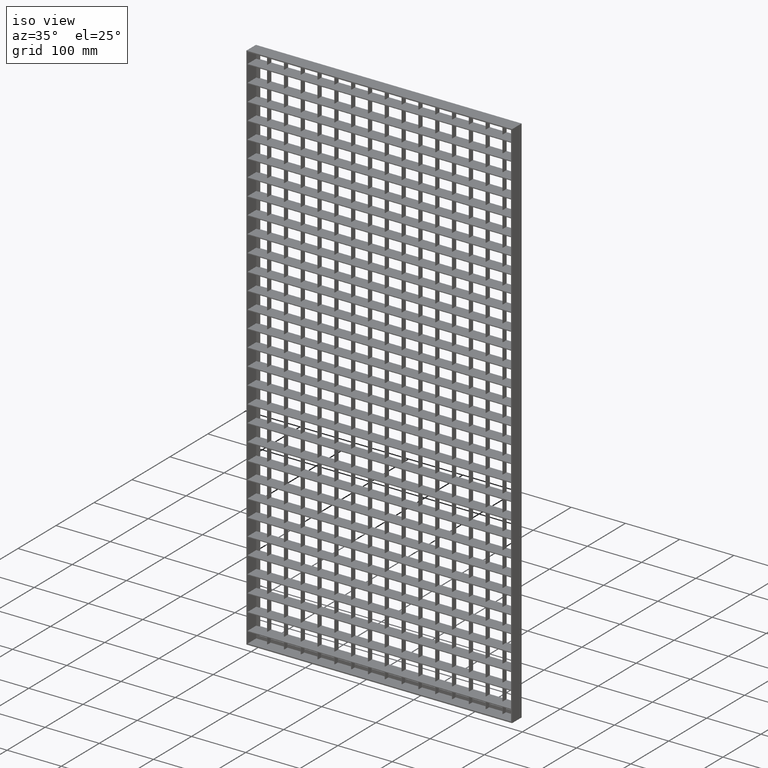
[diagram: clean part render]
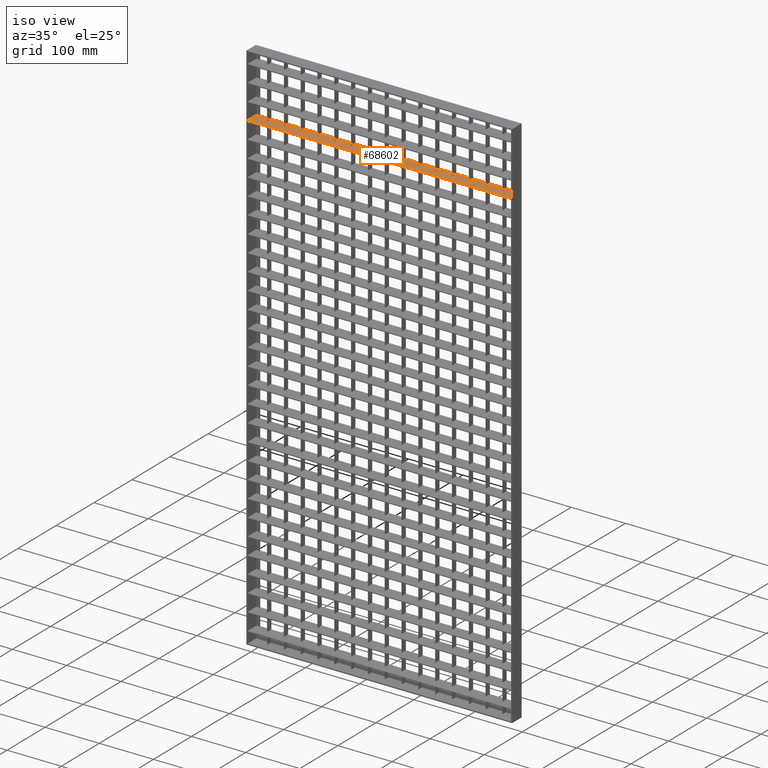
[diagram: same view with one face highlighted and labeled with its STEP entity id]
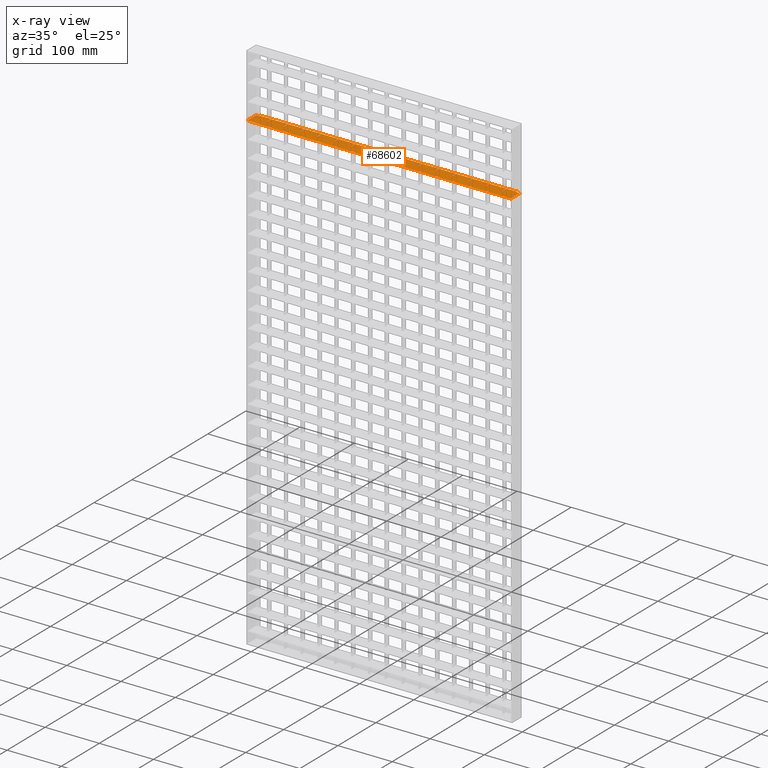
[diagram: x-ray of the same camera — body ghosted, the highlighted face saturated]
A machine part, iso view. The second image highlights one B-rep face of the part: STEP entity #68602.
The next image is the same camera in x-ray: the body ghosted, the highlighted face saturated — about 0% of this face is hidden behind the body in this view.
In plain terms, the highlighted planar face has unit normal (0, 0, 1).
Its self-contained STEP definition (entity closure, byte-faithful):
#96 = VECTOR ( 'NONE', #57185, 1000.000000000000000 ) ;
#450 = EDGE_CURVE ( 'NONE', #51834, #64537, #66896, .T. ) ;
#692 = CARTESIAN_POINT ( 'NONE',  ( 89.49999999999997200, 2.500000000000000400, -116.2500000000003600 ) ) ;
#843 = LINE ( 'NONE', #46391, #42956 ) ;
#906 = ORIENTED_EDGE ( 'NONE', *, *, #33358, .T. ) ;
#938 = VECTOR ( 'NONE', #62815, 1000.000000000000000 ) ;
#1150 = CARTESIAN_POINT ( 'NONE',  ( 58.49999999999994300, 2.499999999999999100, -116.2500000000003600 ) ) ;
#1262 = LINE ( 'NONE', #45015, #44298 ) ;
#1543 = ORIENTED_EDGE ( 'NONE', *, *, #28300, .T. ) ;
#1563 = DIRECTION ( 'NONE',  ( -0.0000000000000000000, 1.000000000000000000, 0.0000000000000000000 ) ) ;
#1612 = DIRECTION ( 'NONE',  ( -8.673617379884035500E-016, -1.000000000000000000, 0.0000000000000000000 ) ) ;
#1718 = VERTEX_POINT ( 'NONE', #10700 ) ;
#1926 = EDGE_CURVE ( 'NONE', #34857, #54946, #36627, .T. ) ;
#2058 = LINE ( 'NONE', #56972, #20094 ) ;
#2160 = CARTESIAN_POINT ( 'NONE',  ( 513.0449595727363900, 12.50000000000015500, -116.2500000000003600 ) ) ;
#2373 = LINE ( 'NONE', #56200, #28135 ) ;
#2557 = LINE ( 'NONE', #30107, #69672 ) ;
#2708 = DIRECTION ( 'NONE',  ( -0.0000000000000000000, -1.000000000000000000, 0.0000000000000000000 ) ) ;
#2755 = EDGE_CURVE ( 'NONE', #66484, #70826, #39073, .T. ) ;
#2800 = ORIENTED_EDGE ( 'NONE', *, *, #67935, .F. ) ;
#2880 = DIRECTION ( 'NONE',  ( 1.000000000000000000, 4.336808689942014300E-016, -0.0000000000000000000 ) ) ;
#2921 = VERTEX_POINT ( 'NONE', #62400 ) ;
#2976 = CARTESIAN_POINT ( 'NONE',  ( 120.5000000000000000, 12.50000000000000000, -116.2500000000006300 ) ) ;
#3070 = DIRECTION ( 'NONE',  ( 0.0000000000000000000, -1.000000000000000000, 0.0000000000000000000 ) ) ;
#3231 = VECTOR ( 'NONE', #43487, 1000.000000000000000 ) ;
#3452 = VERTEX_POINT ( 'NONE', #6533 ) ;
#3472 = DIRECTION ( 'NONE',  ( -0.0000000000000000000, 1.000000000000000000, 0.0000000000000000000 ) ) ;
#3495 = EDGE_CURVE ( 'NONE', #64537, #17684, #50975, .T. ) ;
#3661 = ORIENTED_EDGE ( 'NONE', *, *, #2755, .T. ) ;
#3817 = VERTEX_POINT ( 'NONE', #31188 ) ;
#3905 = VERTEX_POINT ( 'NONE', #66516 ) ;
#3942 = DIRECTION ( 'NONE',  ( 0.0000000000000000000, -1.000000000000000000, 0.0000000000000000000 ) ) ;
#3970 = CARTESIAN_POINT ( 'NONE',  ( 182.4999999999999400, 2.499999999999999100, -116.2500000000003600 ) ) ;
#4086 = CARTESIAN_POINT ( 'NONE',  ( 513.0449595727363900, 2.499999999999898300, -116.2500000000003600 ) ) ;
#4156 = ORIENTED_EDGE ( 'NONE', *, *, #26809, .T. ) ;
#4261 = DIRECTION ( 'NONE',  ( 0.0000000000000000000, -1.000000000000000000, 0.0000000000000000000 ) ) ;
#4425 = CARTESIAN_POINT ( 'NONE',  ( 513.0449595727363900, 2.500000000000116800, -116.2500000000003600 ) ) ;
#4470 = ORIENTED_EDGE ( 'NONE', *, *, #8255, .T. ) ;
#5018 = CARTESIAN_POINT ( 'NONE',  ( 513.0449595727363900, 12.50000000000015500, -116.2500000000003600 ) ) ;
#5051 = DIRECTION ( 'NONE',  ( -1.000000000000000000, 4.336808689942014800E-016, 0.0000000000000000000 ) ) ;
#5111 = VERTEX_POINT ( 'NONE', #28463 ) ;
#5173 = LINE ( 'NONE', #33961, #21457 ) ;
#5465 = VERTEX_POINT ( 'NONE', #29893 ) ;
#5477 = LINE ( 'NONE', #31841, #62275 ) ;
#5788 = CARTESIAN_POINT ( 'NONE',  ( 245.5000000000000000, 2.500000000000000400, -116.2500000000003600 ) ) ;
#5809 = EDGE_CURVE ( 'NONE', #47899, #6969, #7566, .T. ) ;
#6163 = DIRECTION ( 'NONE',  ( -0.0000000000000000000, 1.000000000000000000, 0.0000000000000000000 ) ) ;
#6182 = VECTOR ( 'NONE', #10430, 1000.000000000000000 ) ;
#6234 = VECTOR ( 'NONE', #19403, 1000.000000000000000 ) ;
#6385 = CARTESIAN_POINT ( 'NONE',  ( 90.50000000000002800, -12.49999999999984500, -116.2500000000003600 ) ) ;
#6533 = CARTESIAN_POINT ( 'NONE',  ( 431.5000000000000000, 2.500000000000000400, -116.2500000000004100 ) ) ;
#6749 = ORIENTED_EDGE ( 'NONE', *, *, #8882, .F. ) ;
#6751 = DIRECTION ( 'NONE',  ( -1.000000000000000000, -3.061616997868382600E-016, 0.0000000000000000000 ) ) ;
#6957 = EDGE_CURVE ( 'NONE', #47640, #16005, #37284, .T. ) ;
#6969 = VERTEX_POINT ( 'NONE', #50909 ) ;
#6987 = VERTEX_POINT ( 'NONE', #45615 ) ;
#7191 = VERTEX_POINT ( 'NONE', #54724 ) ;
#7566 = LINE ( 'NONE', #22852, #20406 ) ;
#7574 = EDGE_CURVE ( 'NONE', #54946, #33573, #26114, .T. ) ;
#7694 = DIRECTION ( 'NONE',  ( 0.0000000000000000000, -1.000000000000000000, 0.0000000000000000000 ) ) ;
#7710 = ORIENTED_EDGE ( 'NONE', *, *, #27136, .T. ) ;
#7719 = EDGE_CURVE ( 'NONE', #31366, #49415, #26950, .T. ) ;
#7867 = DIRECTION ( 'NONE',  ( -1.000000000000000000, -3.061616997868382600E-016, 0.0000000000000000000 ) ) ;
#8066 = ORIENTED_EDGE ( 'NONE', *, *, #5809, .F. ) ;
#8162 = VECTOR ( 'NONE', #5051, 1000.000000000000000 ) ;
#8255 = EDGE_CURVE ( 'NONE', #70826, #39419, #48464, .T. ) ;
#8279 = ORIENTED_EDGE ( 'NONE', *, *, #32997, .F. ) ;
#8537 = CARTESIAN_POINT ( 'NONE',  ( 214.5000000000000300, -12.49999999999984500, -116.2500000000003600 ) ) ;
#8663 = EDGE_CURVE ( 'NONE', #39419, #1718, #11347, .T. ) ;
#8795 = VECTOR ( 'NONE', #9367, 1000.000000000000000 ) ;
#8882 = EDGE_CURVE ( 'NONE', #57265, #52900, #45717, .T. ) ;
#9086 = EDGE_CURVE ( 'NONE', #50768, #16005, #23298, .T. ) ;
#9091 = DIRECTION ( 'NONE',  ( -1.000000000000000000, 4.336808689942014300E-016, 0.0000000000000000000 ) ) ;
#9367 = DIRECTION ( 'NONE',  ( -1.000000000000000000, -3.061616997868382600E-016, 0.0000000000000000000 ) ) ;
#9679 = EDGE_CURVE ( 'NONE', #3905, #16302, #47353, .T. ) ;
#9761 = VERTEX_POINT ( 'NONE', #45487 ) ;
#9845 = VECTOR ( 'NONE', #6163, 1000.000000000000000 ) ;
#10430 = DIRECTION ( 'NONE',  ( 0.0000000000000000000, -1.000000000000000000, 0.0000000000000000000 ) ) ;
#10576 = ORIENTED_EDGE ( 'NONE', *, *, #10875, .T. ) ;
#10682 = CARTESIAN_POINT ( 'NONE',  ( 214.5000000000000300, 2.500000000000000400, -116.2500000000003600 ) ) ;
#10700 = CARTESIAN_POINT ( 'NONE',  ( 307.5000000000000000, 2.500000000000000400, -116.2500000000006300 ) ) ;
#10873 = EDGE_CURVE ( 'NONE', #52900, #38945, #65132, .T. ) ;
#10875 = EDGE_CURVE ( 'NONE', #40336, #25561, #68582, .T. ) ;
#10963 = VERTEX_POINT ( 'NONE', #21974 ) ;
#11153 = CARTESIAN_POINT ( 'NONE',  ( 400.4999999999999400, -12.49999999999984500, -116.2500000000003600 ) ) ;
#11300 = ORIENTED_EDGE ( 'NONE', *, *, #22716, .F. ) ;
#11347 = LINE ( 'NONE', #35960, #58697 ) ;
#11461 = EDGE_CURVE ( 'NONE', #66054, #3817, #15070, .T. ) ;
#11468 = LINE ( 'NONE', #40586, #16603 ) ;
#12138 = CARTESIAN_POINT ( 'NONE',  ( 399.4999999999999400, 2.500000000000000900, -116.2500000000004100 ) ) ;
#12155 = CARTESIAN_POINT ( 'NONE',  ( 151.5000000000000000, 12.50000000000000000, -116.2500000000006300 ) ) ;
#12248 = ORIENTED_EDGE ( 'NONE', *, *, #56281, .T. ) ;
#13204 = DIRECTION ( 'NONE',  ( -1.000000000000000000, 4.336808689942014300E-016, 0.0000000000000000000 ) ) ;
#13674 = VECTOR ( 'NONE', #33749, 1000.000000000000000 ) ;
#13920 = CARTESIAN_POINT ( 'NONE',  ( 513.0449595727363900, 2.500000000000196300, -116.2500000000003600 ) ) ;
#13946 = CARTESIAN_POINT ( 'NONE',  ( 513.0449595727363900, 2.499999999999924100, -116.2500000000003600 ) ) ;
#13966 = VECTOR ( 'NONE', #17785, 1000.000000000000000 ) ;
#14173 = VERTEX_POINT ( 'NONE', #28811 ) ;
#14406 = EDGE_CURVE ( 'NONE', #38945, #7191, #52412, .T. ) ;
#14683 = VECTOR ( 'NONE', #13204, 1000.000000000000000 ) ;
#14718 = ORIENTED_EDGE ( 'NONE', *, *, #15001, .T. ) ;
#14832 = CARTESIAN_POINT ( 'NONE',  ( 513.0449595727363900, 12.50000000000015500, -116.2500000000003600 ) ) ;
#14905 = EDGE_CURVE ( 'NONE', #53108, #49419, #2373, .T. ) ;
#14929 = VECTOR ( 'NONE', #58959, 1000.000000000000000 ) ;
#14958 = ORIENTED_EDGE ( 'NONE', *, *, #47499, .T. ) ;
#15001 = EDGE_CURVE ( 'NONE', #66912, #66054, #30758, .T. ) ;
#15055 = CARTESIAN_POINT ( 'NONE',  ( 276.4999999999999400, 2.500000000000000400, -116.2500000000006300 ) ) ;
#15066 = CARTESIAN_POINT ( 'NONE',  ( 275.4999999999999400, -12.49999999999984500, -116.2500000000003600 ) ) ;
#15070 = LINE ( 'NONE', #58537, #27968 ) ;
#15258 = CARTESIAN_POINT ( 'NONE',  ( 513.0449595727363900, 2.499999999999977800, -116.2500000000003600 ) ) ;
#15259 = CARTESIAN_POINT ( 'NONE',  ( 461.5000000000000000, -12.49999999999984500, -116.2500000000003600 ) ) ;
#15303 = ORIENTED_EDGE ( 'NONE', *, *, #11461, .T. ) ;
#15406 = EDGE_CURVE ( 'NONE', #2921, #26671, #16873, .T. ) ;
#15553 = LINE ( 'NONE', #28742, #37916 ) ;
#15576 = CARTESIAN_POINT ( 'NONE',  ( 90.50000000000002800, 2.500000000000000400, -116.2500000000003600 ) ) ;
#15803 = VECTOR ( 'NONE', #48952, 1000.000000000000000 ) ;
#16005 = VERTEX_POINT ( 'NONE', #68423 ) ;
#16061 = DIRECTION ( 'NONE',  ( 1.000000000000000000, 4.336808689942014800E-016, -0.0000000000000000000 ) ) ;
#16302 = VERTEX_POINT ( 'NONE', #43382 ) ;
#16310 = DIRECTION ( 'NONE',  ( -1.000000000000000000, -3.061616997868382600E-016, 0.0000000000000000000 ) ) ;
#16350 = CARTESIAN_POINT ( 'NONE',  ( 430.5000000000000000, 12.50000000000013000, -116.2500000000003600 ) ) ;
#16417 = LINE ( 'NONE', #40375, #14683 ) ;
#16529 = LINE ( 'NONE', #41068, #6234 ) ;
#16556 = CARTESIAN_POINT ( 'NONE',  ( 245.5000000000000000, -12.49999999999984500, -116.2500000000003600 ) ) ;
#16603 = VECTOR ( 'NONE', #41045, 1000.000000000000000 ) ;
#16632 = CARTESIAN_POINT ( 'NONE',  ( 275.4999999999999400, 12.50000000000008200, -116.2500000000003600 ) ) ;
#16693 = EDGE_CURVE ( 'NONE', #48360, #6987, #45124, .T. ) ;
#16873 = LINE ( 'NONE', #24962, #54806 ) ;
#17104 = LINE ( 'NONE', #22677, #13674 ) ;
#17148 = VERTEX_POINT ( 'NONE', #22438 ) ;
#17369 = VECTOR ( 'NONE', #41198, 1000.000000000000000 ) ;
#17679 = DIRECTION ( 'NONE',  ( -1.000000000000000000, 4.336808689942014800E-016, 0.0000000000000000000 ) ) ;
#17684 = VERTEX_POINT ( 'NONE', #54619 ) ;
#17785 = DIRECTION ( 'NONE',  ( -1.000000000000000000, -3.061616997868382600E-016, 0.0000000000000000000 ) ) ;
#17927 = CARTESIAN_POINT ( 'NONE',  ( 488.0000000000001100, -12.50000000000000400, -116.2500000000003600 ) ) ;
#18075 = EDGE_CURVE ( 'NONE', #3452, #66912, #16417, .T. ) ;
#18157 = VERTEX_POINT ( 'NONE', #20129 ) ;
#18460 = VECTOR ( 'NONE', #49620, 1000.000000000000000 ) ;
#18551 = DIRECTION ( 'NONE',  ( -0.0000000000000000000, 1.000000000000000000, 0.0000000000000000000 ) ) ;
#18768 = CARTESIAN_POINT ( 'NONE',  ( 482.0000000000001700, 10.50000000000036400, -116.2500000000004100 ) ) ;
#18931 = DIRECTION ( 'NONE',  ( 1.000000000000000000, 0.0000000000000000000, -0.0000000000000000000 ) ) ;
#19119 = DIRECTION ( 'NONE',  ( -1.000000000000000000, -3.061616997868382600E-016, 0.0000000000000000000 ) ) ;
#19202 = CARTESIAN_POINT ( 'NONE',  ( 27.49999999999999600, 12.50000000000000000, -116.2500000000004100 ) ) ;
#19396 = VECTOR ( 'NONE', #66596, 1000.000000000000000 ) ;
#19403 = DIRECTION ( 'NONE',  ( -0.0000000000000000000, 1.000000000000000000, 0.0000000000000000000 ) ) ;
#19555 = ORIENTED_EDGE ( 'NONE', *, *, #22077, .T. ) ;
#19968 = EDGE_CURVE ( 'NONE', #18157, #10963, #48892, .T. ) ;
#20094 = VECTOR ( 'NONE', #55993, 1000.000000000000000 ) ;
#20127 = VECTOR ( 'NONE', #1563, 1000.000000000000000 ) ;
#20129 = CARTESIAN_POINT ( 'NONE',  ( 244.5000000000000000, 12.50000000000000000, -116.2500000000006300 ) ) ;
#20223 = AXIS2_PLACEMENT_3D ( 'NONE', #68721, #29992, #18931 ) ;
#20283 = VERTEX_POINT ( 'NONE', #57581 ) ;
#20406 = VECTOR ( 'NONE', #67114, 1000.000000000000000 ) ;
#20677 = VECTOR ( 'NONE', #4261, 1000.000000000000000 ) ;
#20783 = EDGE_CURVE ( 'NONE', #51693, #6969, #64251, .T. ) ;
#21042 = LINE ( 'NONE', #25977, #58984 ) ;
#21093 = ORIENTED_EDGE ( 'NONE', *, *, #70552, .T. ) ;
#21457 = VECTOR ( 'NONE', #39021, 1000.000000000000000 ) ;
#21656 = EDGE_CURVE ( 'NONE', #16302, #21846, #26181, .T. ) ;
#21752 = EDGE_CURVE ( 'NONE', #17148, #30902, #51158, .T. ) ;
#21846 = VERTEX_POINT ( 'NONE', #10682 ) ;
#21932 = VERTEX_POINT ( 'NONE', #56867 ) ;
#21974 = CARTESIAN_POINT ( 'NONE',  ( 214.5000000000000300, 12.50000000000006400, -116.2500000000003600 ) ) ;
#22077 = EDGE_CURVE ( 'NONE', #20283, #21932, #61427, .T. ) ;
#22165 = DIRECTION ( 'NONE',  ( -1.000000000000000000, -3.061616997868382600E-016, 0.0000000000000000000 ) ) ;
#22215 = VERTEX_POINT ( 'NONE', #70967 ) ;
#22290 = VECTOR ( 'NONE', #41111, 1000.000000000000000 ) ;
#22361 = ORIENTED_EDGE ( 'NONE', *, *, #61839, .F. ) ;
#22438 = CARTESIAN_POINT ( 'NONE',  ( 400.4999999999999400, 2.500000000000000400, -116.2500000000004100 ) ) ;
#22585 = CARTESIAN_POINT ( 'NONE',  ( 28.49999999999997200, 2.500000000000000400, -116.2500000000003600 ) ) ;
#22660 = VECTOR ( 'NONE', #7867, 1000.000000000000000 ) ;
#22677 = CARTESIAN_POINT ( 'NONE',  ( 369.5000000000000600, -12.49999999999984500, -116.2500000000003600 ) ) ;
#22702 = ORIENTED_EDGE ( 'NONE', *, *, #62460, .F. ) ;
#22716 = EDGE_CURVE ( 'NONE', #60746, #61676, #37166, .T. ) ;
#22748 = CARTESIAN_POINT ( 'NONE',  ( 461.5000000000000000, 2.500000000000000900, -116.2500000000004100 ) ) ;
#22852 = CARTESIAN_POINT ( 'NONE',  ( 28.49999999999997200, -12.49999999999984500, -116.2500000000003600 ) ) ;
#22865 = VERTEX_POINT ( 'NONE', #44559 ) ;
#23082 = CARTESIAN_POINT ( 'NONE',  ( 338.5000000000000000, 12.50000000000000000, -116.2500000000006300 ) ) ;
#23095 = VECTOR ( 'NONE', #31160, 1000.000000000000000 ) ;
#23298 = LINE ( 'NONE', #6385, #35322 ) ;
#23436 = VECTOR ( 'NONE', #16310, 1000.000000000000000 ) ;
#23466 = EDGE_CURVE ( 'NONE', #71134, #49415, #29754, .T. ) ;
#23620 = CARTESIAN_POINT ( 'NONE',  ( 368.5000000000000600, -12.49999999999984500, -116.2500000000003600 ) ) ;
#23894 = LINE ( 'NONE', #4086, #3231 ) ;
#24038 = ORIENTED_EDGE ( 'NONE', *, *, #67385, .T. ) ;
#24152 = CARTESIAN_POINT ( 'NONE',  ( 306.5000000000000000, -12.49999999999984500, -116.2500000000003600 ) ) ;
#24465 = VECTOR ( 'NONE', #22165, 1000.000000000000000 ) ;
#24664 = VECTOR ( 'NONE', #55847, 1000.000000000000000 ) ;
#24672 = VECTOR ( 'NONE', #36663, 1000.000000000000000 ) ;
#24722 = ORIENTED_EDGE ( 'NONE', *, *, #21752, .T. ) ;
#24962 = CARTESIAN_POINT ( 'NONE',  ( 513.0449595727363900, 12.50000000000015500, -116.2500000000003600 ) ) ;
#25010 = ORIENTED_EDGE ( 'NONE', *, *, #7719, .T. ) ;
#25453 = LINE ( 'NONE', #62604, #71087 ) ;
#25561 = VERTEX_POINT ( 'NONE', #22748 ) ;
#25813 = ORIENTED_EDGE ( 'NONE', *, *, #20783, .T. ) ;
#25977 = CARTESIAN_POINT ( 'NONE',  ( 513.0449595727363900, 12.50000000000015500, -116.2500000000003600 ) ) ;
#26114 = LINE ( 'NONE', #34453, #20127 ) ;
#26181 = LINE ( 'NONE', #47974, #33940 ) ;
#26213 = CARTESIAN_POINT ( 'NONE',  ( 368.5000000000000600, 2.500000000000000900, -116.2500000000006300 ) ) ;
#26330 = VECTOR ( 'NONE', #3942, 1000.000000000000000 ) ;
#26336 = DIRECTION ( 'NONE',  ( 1.000000000000000000, 4.336808689942014300E-016, -0.0000000000000000000 ) ) ;
#26582 = VERTEX_POINT ( 'NONE', #66640 ) ;
#26612 = LINE ( 'NONE', #8537, #28340 ) ;
#26671 = VERTEX_POINT ( 'NONE', #23082 ) ;
#26809 = EDGE_CURVE ( 'NONE', #32787, #66484, #64484, .T. ) ;
#26950 = LINE ( 'NONE', #50087, #36405 ) ;
#27136 = EDGE_CURVE ( 'NONE', #14173, #22865, #17104, .T. ) ;
#27584 = VERTEX_POINT ( 'NONE', #26213 ) ;
#27885 = LINE ( 'NONE', #4425, #48555 ) ;
#27968 = VECTOR ( 'NONE', #52286, 1000.000000000000000 ) ;
#28097 = LINE ( 'NONE', #44291, #24664 ) ;
#28135 = VECTOR ( 'NONE', #1612, 1000.000000000000000 ) ;
#28149 = CARTESIAN_POINT ( 'NONE',  ( 7.999999999999994700, 12.50000000000000500, -116.2500000000004100 ) ) ;
#28300 = EDGE_CURVE ( 'NONE', #36420, #65101, #23894, .T. ) ;
#28340 = VECTOR ( 'NONE', #3472, 1000.000000000000000 ) ;
#28463 = CARTESIAN_POINT ( 'NONE',  ( 2.000000000000002700, 10.50000000000000500, -116.2500000000004100 ) ) ;
#28677 = VECTOR ( 'NONE', #29376, 1000.000000000000000 ) ;
#28742 = CARTESIAN_POINT ( 'NONE',  ( 513.0449595727363900, 2.499999999999937800, -116.2500000000003600 ) ) ;
#28811 = CARTESIAN_POINT ( 'NONE',  ( 369.5000000000000600, 12.50000000000000000, -116.2500000000006300 ) ) ;
#28975 = CARTESIAN_POINT ( 'NONE',  ( 513.0449595727363900, 12.50000000000015500, -116.2500000000003600 ) ) ;
#29043 = VECTOR ( 'NONE', #68173, 1000.000000000000000 ) ;
#29047 = VECTOR ( 'NONE', #32388, 1000.000000000000000 ) ;
#29164 = ORIENTED_EDGE ( 'NONE', *, *, #19968, .T. ) ;
#29376 = DIRECTION ( 'NONE',  ( -8.673617379884034500E-016, 1.000000000000000000, 0.0000000000000000000 ) ) ;
#29388 = CARTESIAN_POINT ( 'NONE',  ( 183.5000000000000000, 2.500000000000000400, -116.2500000000003600 ) ) ;
#29728 = DIRECTION ( 'NONE',  ( -1.000000000000000000, -3.061616997868382600E-016, 0.0000000000000000000 ) ) ;
#29754 = LINE ( 'NONE', #16556, #19396 ) ;
#29807 = CARTESIAN_POINT ( 'NONE',  ( 121.5000000000000000, 2.500000000000000400, -116.2500000000003600 ) ) ;
#29893 = CARTESIAN_POINT ( 'NONE',  ( 152.4999999999999700, 2.500000000000000400, -116.2500000000003600 ) ) ;
#29992 = DIRECTION ( 'NONE',  ( 0.0000000000000000000, 0.0000000000000000000, 1.000000000000000000 ) ) ;
#30107 = CARTESIAN_POINT ( 'NONE',  ( 431.5000000000000000, -12.49999999999984500, -116.2500000000003600 ) ) ;
#30179 = CARTESIAN_POINT ( 'NONE',  ( 513.0449595727363900, 12.50000000000015500, -116.2500000000003600 ) ) ;
#30463 = ORIENTED_EDGE ( 'NONE', *, *, #61383, .F. ) ;
#30561 = VERTEX_POINT ( 'NONE', #29807 ) ;
#30758 = LINE ( 'NONE', #62677, #29043 ) ;
#30902 = VERTEX_POINT ( 'NONE', #12138 ) ;
#31134 = VECTOR ( 'NONE', #34831, 1000.000000000000000 ) ;
#31160 = DIRECTION ( 'NONE',  ( -0.0000000000000000000, 1.000000000000000000, 0.0000000000000000000 ) ) ;
#31188 = CARTESIAN_POINT ( 'NONE',  ( 400.4999999999999400, 12.50000000000000000, -116.2500000000004100 ) ) ;
#31333 = EDGE_CURVE ( 'NONE', #3817, #17148, #48654, .T. ) ;
#31335 = LINE ( 'NONE', #46131, #66637 ) ;
#31366 = VERTEX_POINT ( 'NONE', #16632 ) ;
#31394 = DIRECTION ( 'NONE',  ( -0.0000000000000000000, 1.000000000000000000, 0.0000000000000000000 ) ) ;
#31433 = CARTESIAN_POINT ( 'NONE',  ( 245.5000000000000000, 12.50000000000007300, -116.2500000000003600 ) ) ;
#31458 = VERTEX_POINT ( 'NONE', #53713 ) ;
#31624 = EDGE_CURVE ( 'NONE', #21932, #67962, #41672, .T. ) ;
#31646 = ORIENTED_EDGE ( 'NONE', *, *, #58895, .F. ) ;
#31662 = ORIENTED_EDGE ( 'NONE', *, *, #58603, .F. ) ;
#31841 = CARTESIAN_POINT ( 'NONE',  ( 513.0449595727363900, 2.500000000000210500, -116.2500000000003600 ) ) ;
#32020 = ORIENTED_EDGE ( 'NONE', *, *, #53065, .T. ) ;
#32030 = DIRECTION ( 'NONE',  ( 1.000000000000000000, 4.336808689942014800E-016, -0.0000000000000000000 ) ) ;
#32256 = ORIENTED_EDGE ( 'NONE', *, *, #10873, .F. ) ;
#32267 = CARTESIAN_POINT ( 'NONE',  ( 338.5000000000000000, -12.49999999999984500, -116.2500000000003600 ) ) ;
#32388 = DIRECTION ( 'NONE',  ( -1.000000000000000000, -3.061616997868382600E-016, 0.0000000000000000000 ) ) ;
#32787 = VERTEX_POINT ( 'NONE', #59482 ) ;
#32857 = LINE ( 'NONE', #62856, #38875 ) ;
#32997 = EDGE_CURVE ( 'NONE', #22215, #5465, #1262, .T. ) ;
#33041 = CARTESIAN_POINT ( 'NONE',  ( 337.5000000000000000, -12.49999999999984500, -116.2500000000003600 ) ) ;
#33172 = ORIENTED_EDGE ( 'NONE', *, *, #31333, .T. ) ;
#33202 = CARTESIAN_POINT ( 'NONE',  ( 213.5000000000000300, -12.49999999999984500, -116.2500000000003600 ) ) ;
#33358 = EDGE_CURVE ( 'NONE', #9761, #20283, #50232, .T. ) ;
#33543 = CARTESIAN_POINT ( 'NONE',  ( 89.50000000000000000, 12.50000000000000000, -116.2500000000004100 ) ) ;
#33573 = VERTEX_POINT ( 'NONE', #34110 ) ;
#33749 = DIRECTION ( 'NONE',  ( 0.0000000000000000000, -1.000000000000000000, 0.0000000000000000000 ) ) ;
#33940 = VECTOR ( 'NONE', #32030, 1000.000000000000000 ) ;
#33959 = DIRECTION ( 'NONE',  ( 0.0000000000000000000, -1.000000000000000000, 0.0000000000000000000 ) ) ;
#33961 = CARTESIAN_POINT ( 'NONE',  ( 513.0449595727363900, 12.50000000000015500, -116.2500000000003600 ) ) ;
#34110 = CARTESIAN_POINT ( 'NONE',  ( 59.50000000000005000, 12.50000000000001600, -116.2500000000003600 ) ) ;
#34141 = VECTOR ( 'NONE', #55407, 1000.000000000000000 ) ;
#34452 = DIRECTION ( 'NONE',  ( -0.0000000000000000000, 1.000000000000000000, 0.0000000000000000000 ) ) ;
#34453 = CARTESIAN_POINT ( 'NONE',  ( 59.50000000000000000, -12.49999999999984500, -116.2500000000003600 ) ) ;
#34640 = VECTOR ( 'NONE', #50607, 1000.000000000000000 ) ;
#34688 = VECTOR ( 'NONE', #40814, 1000.000000000000000 ) ;
#34831 = DIRECTION ( 'NONE',  ( -1.000000000000000000, 0.0000000000000000000, 0.0000000000000000000 ) ) ;
#34842 = DIRECTION ( 'NONE',  ( -1.000000000000000000, -3.061616997868382600E-016, 0.0000000000000000000 ) ) ;
#34857 = VERTEX_POINT ( 'NONE', #1150 ) ;
#34920 = DIRECTION ( 'NONE',  ( -1.000000000000000000, -3.061616997868382600E-016, 0.0000000000000000000 ) ) ;
#34986 = DIRECTION ( 'NONE',  ( -0.0000000000000000000, 1.000000000000000000, 0.0000000000000000000 ) ) ;
#35084 = ORIENTED_EDGE ( 'NONE', *, *, #23466, .F. ) ;
#35322 = VECTOR ( 'NONE', #56175, 1000.000000000000000 ) ;
#35402 = VERTEX_POINT ( 'NONE', #50114 ) ;
#35448 = EDGE_CURVE ( 'NONE', #41248, #53108, #5173, .T. ) ;
#35656 = CARTESIAN_POINT ( 'NONE',  ( 58.50000000000000000, 12.50000000000000000, -116.2500000000004100 ) ) ;
#35808 = CARTESIAN_POINT ( 'NONE',  ( 2.000000000000001800, -12.50000000000000200, -116.2500000000003600 ) ) ;
#35960 = CARTESIAN_POINT ( 'NONE',  ( 307.5000000000000000, -12.49999999999984500, -116.2500000000003600 ) ) ;
#36054 = ORIENTED_EDGE ( 'NONE', *, *, #18075, .T. ) ;
#36405 = VECTOR ( 'NONE', #39227, 1000.000000000000000 ) ;
#36420 = VERTEX_POINT ( 'NONE', #15055 ) ;
#36552 = ORIENTED_EDGE ( 'NONE', *, *, #58565, .F. ) ;
#36599 = ORIENTED_EDGE ( 'NONE', *, *, #70761, .T. ) ;
#36627 = LINE ( 'NONE', #13920, #68474 ) ;
#36663 = DIRECTION ( 'NONE',  ( 1.000000000000000000, 4.336808689942014800E-016, -0.0000000000000000000 ) ) ;
#37166 = LINE ( 'NONE', #54440, #50122 ) ;
#37284 = LINE ( 'NONE', #28975, #22660 ) ;
#37387 = ORIENTED_EDGE ( 'NONE', *, *, #57656, .T. ) ;
#37430 = LINE ( 'NONE', #23620, #46949 ) ;
#37675 = ORIENTED_EDGE ( 'NONE', *, *, #38827, .T. ) ;
#37693 = CARTESIAN_POINT ( 'NONE',  ( 7.999999999999992900, 10.50000000000000500, -116.2500000000004100 ) ) ;
#37871 = DIRECTION ( 'NONE',  ( 1.000000000000000000, 4.336808689942014300E-016, -0.0000000000000000000 ) ) ;
#37916 = VECTOR ( 'NONE', #17679, 1000.000000000000000 ) ;
#37922 = LINE ( 'NONE', #50661, #59483 ) ;
#38090 = LINE ( 'NONE', #61179, #34640 ) ;
#38136 = VERTEX_POINT ( 'NONE', #17927 ) ;
#38266 = ORIENTED_EDGE ( 'NONE', *, *, #68661, .F. ) ;
#38502 = CARTESIAN_POINT ( 'NONE',  ( 462.5000000000000000, 2.500000000000000400, -116.2500000000004100 ) ) ;
#38827 = EDGE_CURVE ( 'NONE', #57265, #39250, #32857, .T. ) ;
#38875 = VECTOR ( 'NONE', #34920, 1000.000000000000000 ) ;
#38945 = VERTEX_POINT ( 'NONE', #29388 ) ;
#39021 = DIRECTION ( 'NONE',  ( -1.000000000000000000, -3.061616997868382600E-016, 0.0000000000000000000 ) ) ;
#39073 = LINE ( 'NONE', #33041, #9845 ) ;
#39227 = DIRECTION ( 'NONE',  ( -1.000000000000000000, -3.061616997868382600E-016, 0.0000000000000000000 ) ) ;
#39250 = VERTEX_POINT ( 'NONE', #45495 ) ;
#39419 = VERTEX_POINT ( 'NONE', #40647 ) ;
#39519 = VECTOR ( 'NONE', #26336, 1000.000000000000000 ) ;
#39698 = ORIENTED_EDGE ( 'NONE', *, *, #9086, .F. ) ;
#39880 = ORIENTED_EDGE ( 'NONE', *, *, #43164, .T. ) ;
#40031 = ORIENTED_EDGE ( 'NONE', *, *, #16693, .T. ) ;
#40049 = CARTESIAN_POINT ( 'NONE',  ( 430.5000000000000000, 2.500000000000000900, -116.2500000000004100 ) ) ;
#40336 = VERTEX_POINT ( 'NONE', #38502 ) ;
#40375 = CARTESIAN_POINT ( 'NONE',  ( 513.0449595727363900, 2.499999999999964000, -116.2500000000003600 ) ) ;
#40586 = CARTESIAN_POINT ( 'NONE',  ( 58.50000000000000000, -12.49999999999984500, -116.2500000000003600 ) ) ;
#40647 = CARTESIAN_POINT ( 'NONE',  ( 307.5000000000000000, 12.50000000000000000, -116.2500000000006300 ) ) ;
#40679 = ORIENTED_EDGE ( 'NONE', *, *, #14406, .F. ) ;
#40814 = DIRECTION ( 'NONE',  ( 0.0000000000000000000, -1.000000000000000000, 0.0000000000000000000 ) ) ;
#41045 = DIRECTION ( 'NONE',  ( 0.0000000000000000000, -1.000000000000000000, 0.0000000000000000000 ) ) ;
#41068 = CARTESIAN_POINT ( 'NONE',  ( 152.4999999999999700, -12.49999999999984500, -116.2500000000003600 ) ) ;
#41111 = DIRECTION ( 'NONE',  ( -1.000000000000000000, 4.336808689942014800E-016, 0.0000000000000000000 ) ) ;
#41198 = DIRECTION ( 'NONE',  ( 0.0000000000000000000, -1.000000000000000000, 0.0000000000000000000 ) ) ;
#41240 = FACE_OUTER_BOUND ( 'NONE', #50199, .T. ) ;
#41248 = VERTEX_POINT ( 'NONE', #19202 ) ;
#41297 = CARTESIAN_POINT ( 'NONE',  ( 513.0449595727363900, 2.500000000000184300, -116.2500000000003600 ) ) ;
#41551 = CARTESIAN_POINT ( 'NONE',  ( 337.5000000000000000, 2.500000000000000900, -116.2500000000006300 ) ) ;
#41671 = CARTESIAN_POINT ( 'NONE',  ( 27.49999999999996800, -12.49999999999984500, -116.2500000000003600 ) ) ;
#41672 = LINE ( 'NONE', #44091, #24465 ) ;
#42014 = EDGE_CURVE ( 'NONE', #60746, #33573, #21042, .T. ) ;
#42025 = CARTESIAN_POINT ( 'NONE',  ( 183.5000000000000000, -12.49999999999984500, -116.2500000000003600 ) ) ;
#42512 = ORIENTED_EDGE ( 'NONE', *, *, #46775, .T. ) ;
#42646 = EDGE_CURVE ( 'NONE', #1718, #51834, #47752, .T. ) ;
#42935 = EDGE_CURVE ( 'NONE', #64174, #14173, #31335, .T. ) ;
#42943 = ORIENTED_EDGE ( 'NONE', *, *, #59186, .F. ) ;
#42956 = VECTOR ( 'NONE', #7694, 1000.000000000000000 ) ;
#43164 = EDGE_CURVE ( 'NONE', #25561, #48360, #55387, .T. ) ;
#43278 = ORIENTED_EDGE ( 'NONE', *, *, #35448, .T. ) ;
#43368 = DIRECTION ( 'NONE',  ( 0.0000000000000000000, -1.000000000000000000, 0.0000000000000000000 ) ) ;
#43382 = CARTESIAN_POINT ( 'NONE',  ( 213.4999999999999700, 2.500000000000000400, -116.2500000000003600 ) ) ;
#43487 = DIRECTION ( 'NONE',  ( -1.000000000000000000, 4.336808689942014800E-016, 0.0000000000000000000 ) ) ;
#43956 = ORIENTED_EDGE ( 'NONE', *, *, #67458, .F. ) ;
#44015 = ORIENTED_EDGE ( 'NONE', *, *, #14905, .T. ) ;
#44091 = CARTESIAN_POINT ( 'NONE',  ( 513.0449595727363900, 12.50000000000015500, -116.2500000000003600 ) ) ;
#44291 = CARTESIAN_POINT ( 'NONE',  ( 276.4999999999999400, -12.49999999999984500, -116.2500000000003600 ) ) ;
#44298 = VECTOR ( 'NONE', #67124, 1000.000000000000000 ) ;
#44559 = CARTESIAN_POINT ( 'NONE',  ( 369.5000000000000600, 2.500000000000000400, -116.2500000000006300 ) ) ;
#45015 = CARTESIAN_POINT ( 'NONE',  ( 513.0449595727363900, 2.500000000000156800, -116.2500000000003600 ) ) ;
#45124 = LINE ( 'NONE', #30179, #58070 ) ;
#45133 = VECTOR ( 'NONE', #70302, 1000.000000000000000 ) ;
#45487 = CARTESIAN_POINT ( 'NONE',  ( 488.0000000000001100, 10.50000000000000500, -116.2500000000004100 ) ) ;
#45495 = CARTESIAN_POINT ( 'NONE',  ( 152.5000000000000300, 12.50000000000004400, -116.2500000000003600 ) ) ;
#45615 = CARTESIAN_POINT ( 'NONE',  ( 431.5000000000000000, 12.50000000000000000, -116.2500000000004100 ) ) ;
#45622 = VECTOR ( 'NONE', #49113, 1000.000000000000000 ) ;
#45717 = LINE ( 'NONE', #54004, #20677 ) ;
#45778 = CARTESIAN_POINT ( 'NONE',  ( 306.5000000000000000, 12.50000000000009200, -116.2500000000003600 ) ) ;
#45873 = CARTESIAN_POINT ( 'NONE',  ( 462.5000000000000000, -12.49999999999984500, -116.2500000000003600 ) ) ;
#45971 = CARTESIAN_POINT ( 'NONE',  ( 399.4999999999999400, 12.50000000000012100, -116.2500000000003600 ) ) ;
#46131 = CARTESIAN_POINT ( 'NONE',  ( 513.0449595727363900, 12.50000000000015500, -116.2500000000003600 ) ) ;
#46156 = PLANE ( 'NONE',  #20223 ) ;
#46391 = CARTESIAN_POINT ( 'NONE',  ( 120.5000000000000000, -12.49999999999984500, -116.2500000000003600 ) ) ;
#46775 = EDGE_CURVE ( 'NONE', #22865, #27584, #15553, .T. ) ;
#46949 = VECTOR ( 'NONE', #34452, 1000.000000000000000 ) ;
#46988 = EDGE_CURVE ( 'NONE', #67962, #40336, #56901, .T. ) ;
#47156 = ORIENTED_EDGE ( 'NONE', *, *, #49830, .F. ) ;
#47353 = LINE ( 'NONE', #33202, #45622 ) ;
#47442 = LINE ( 'NONE', #32267, #6182 ) ;
#47499 = EDGE_CURVE ( 'NONE', #6987, #3452, #2557, .T. ) ;
#47640 = VERTEX_POINT ( 'NONE', #2976 ) ;
#47678 = LINE ( 'NONE', #15066, #65757 ) ;
#47752 = LINE ( 'NONE', #55064, #8162 ) ;
#47899 = VERTEX_POINT ( 'NONE', #22585 ) ;
#47912 = LINE ( 'NONE', #49644, #34141 ) ;
#47974 = CARTESIAN_POINT ( 'NONE',  ( 513.0449595727363900, 2.500000000000130600, -116.2500000000003600 ) ) ;
#48179 = LINE ( 'NONE', #41297, #39519 ) ;
#48344 = CARTESIAN_POINT ( 'NONE',  ( 513.0449595727363900, 12.50000000000015500, -116.2500000000003600 ) ) ;
#48360 = VERTEX_POINT ( 'NONE', #60093 ) ;
#48464 = LINE ( 'NONE', #48344, #23436 ) ;
#48511 = ORIENTED_EDGE ( 'NONE', *, *, #67592, .T. ) ;
#48518 = LINE ( 'NONE', #52390, #34688 ) ;
#48555 = VECTOR ( 'NONE', #16061, 1000.000000000000000 ) ;
#48654 = LINE ( 'NONE', #11153, #18460 ) ;
#48892 = LINE ( 'NONE', #5018, #29047 ) ;
#48952 = DIRECTION ( 'NONE',  ( -0.0000000000000000000, 1.000000000000000000, 0.0000000000000000000 ) ) ;
#49113 = DIRECTION ( 'NONE',  ( 0.0000000000000000000, -1.000000000000000000, 0.0000000000000000000 ) ) ;
#49415 = VERTEX_POINT ( 'NONE', #31433 ) ;
#49419 = VERTEX_POINT ( 'NONE', #37693 ) ;
#49620 = DIRECTION ( 'NONE',  ( 0.0000000000000000000, -1.000000000000000000, 0.0000000000000000000 ) ) ;
#49644 = CARTESIAN_POINT ( 'NONE',  ( 513.0449595727363900, 12.50000000000015500, -116.2500000000003600 ) ) ;
#49830 = EDGE_CURVE ( 'NONE', #41248, #49835, #57407, .T. ) ;
#49835 = VERTEX_POINT ( 'NONE', #52982 ) ;
#50087 = CARTESIAN_POINT ( 'NONE',  ( 513.0449595727363900, 12.50000000000015500, -116.2500000000003600 ) ) ;
#50104 = LINE ( 'NONE', #68027, #31134 ) ;
#50114 = CARTESIAN_POINT ( 'NONE',  ( 121.5000000000000000, 12.50000000000003600, -116.2500000000003600 ) ) ;
#50118 = ORIENTED_EDGE ( 'NONE', *, *, #46988, .T. ) ;
#50122 = VECTOR ( 'NONE', #43368, 1000.000000000000000 ) ;
#50199 = EDGE_LOOP ( 'NONE', ( #59926, #50118, #10576, #39880, #40031, #14958, #36054, #14718, #15303, #33172, #24722, #59969, #67054, #7710, #42512, #37387, #53955, #32020, #4156, #3661, #4470, #50298, #64437, #53205, #52156, #12248, #1543, #53275, #25010, #35084, #30463, #36552, #29164, #55906, #53128, #52169, #21093, #40679, #32256, #6749, #37675, #43956, #8279, #42943, #48511, #2800, #22361, #64811, #57056, #39698, #38266, #11300, #54626, #52110, #69661, #31662, #25813, #8066, #31646, #47156, #43278, #44015, #24038, #36599, #22702, #58353, #906, #19555 ) ) ;
#50232 = LINE ( 'NONE', #59899, #14929 ) ;
#50298 = ORIENTED_EDGE ( 'NONE', *, *, #8663, .T. ) ;
#50607 = DIRECTION ( 'NONE',  ( -1.000000000000000000, -3.061616997868382600E-016, 0.0000000000000000000 ) ) ;
#50661 = CARTESIAN_POINT ( 'NONE',  ( 121.5000000000000000, -12.49999999999984500, -116.2500000000003600 ) ) ;
#50768 = VERTEX_POINT ( 'NONE', #15576 ) ;
#50909 = CARTESIAN_POINT ( 'NONE',  ( 28.50000000000002500, 12.50000000000000500, -116.2500000000003600 ) ) ;
#50975 = LINE ( 'NONE', #67820, #13966 ) ;
#51158 = LINE ( 'NONE', #70061, #45133 ) ;
#51376 = CARTESIAN_POINT ( 'NONE',  ( 462.5000000000000000, 12.50000000000000000, -116.2500000000004100 ) ) ;
#51459 = VERTEX_POINT ( 'NONE', #12155 ) ;
#51693 = VERTEX_POINT ( 'NONE', #35656 ) ;
#51710 = LINE ( 'NONE', #57530, #938 ) ;
#51834 = VERTEX_POINT ( 'NONE', #59012 ) ;
#52110 = ORIENTED_EDGE ( 'NONE', *, *, #7574, .F. ) ;
#52156 = ORIENTED_EDGE ( 'NONE', *, *, #3495, .T. ) ;
#52169 = ORIENTED_EDGE ( 'NONE', *, *, #9679, .F. ) ;
#52194 = VECTOR ( 'NONE', #6751, 1000.000000000000000 ) ;
#52231 = VECTOR ( 'NONE', #18551, 1000.000000000000000 ) ;
#52286 = DIRECTION ( 'NONE',  ( -1.000000000000000000, -3.061616997868382600E-016, 0.0000000000000000000 ) ) ;
#52326 = DIRECTION ( 'NONE',  ( -0.0000000000000000000, 1.000000000000000000, 0.0000000000000000000 ) ) ;
#52378 = VERTEX_POINT ( 'NONE', #35808 ) ;
#52390 = CARTESIAN_POINT ( 'NONE',  ( 244.5000000000000000, -12.49999999999984500, -116.2500000000003600 ) ) ;
#52412 = LINE ( 'NONE', #42025, #23095 ) ;
#52900 = VERTEX_POINT ( 'NONE', #3970 ) ;
#52982 = CARTESIAN_POINT ( 'NONE',  ( 27.49999999999996800, 2.499999999999999600, -116.2500000000003600 ) ) ;
#53065 = EDGE_CURVE ( 'NONE', #26671, #32787, #47442, .T. ) ;
#53108 = VERTEX_POINT ( 'NONE', #28149 ) ;
#53128 = ORIENTED_EDGE ( 'NONE', *, *, #21656, .F. ) ;
#53205 = ORIENTED_EDGE ( 'NONE', *, *, #450, .T. ) ;
#53275 = ORIENTED_EDGE ( 'NONE', *, *, #66481, .T. ) ;
#53713 = CARTESIAN_POINT ( 'NONE',  ( 120.5000000000000000, 2.500000000000000000, -116.2500000000003600 ) ) ;
#53955 = ORIENTED_EDGE ( 'NONE', *, *, #15406, .T. ) ;
#53957 = VECTOR ( 'NONE', #9091, 1000.000000000000000 ) ;
#54004 = CARTESIAN_POINT ( 'NONE',  ( 182.5000000000000000, -12.49999999999984500, -116.2500000000003600 ) ) ;
#54440 = CARTESIAN_POINT ( 'NONE',  ( 89.50000000000002800, -12.49999999999984500, -116.2500000000003600 ) ) ;
#54619 = CARTESIAN_POINT ( 'NONE',  ( 276.4999999999999400, 12.50000000000000000, -116.2500000000006300 ) ) ;
#54626 = ORIENTED_EDGE ( 'NONE', *, *, #42014, .T. ) ;
#54724 = CARTESIAN_POINT ( 'NONE',  ( 183.5000000000000600, 12.50000000000005500, -116.2500000000003600 ) ) ;
#54806 = VECTOR ( 'NONE', #34842, 1000.000000000000000 ) ;
#54946 = VERTEX_POINT ( 'NONE', #55791 ) ;
#55064 = CARTESIAN_POINT ( 'NONE',  ( 513.0449595727363900, 2.499999999999910300, -116.2500000000003600 ) ) ;
#55095 = EDGE_CURVE ( 'NONE', #47640, #31458, #843, .T. ) ;
#55387 = LINE ( 'NONE', #15259, #15803 ) ;
#55407 = DIRECTION ( 'NONE',  ( -1.000000000000000000, -3.061616997868382600E-016, 0.0000000000000000000 ) ) ;
#55747 = VECTOR ( 'NONE', #52326, 1000.000000000000000 ) ;
#55791 = CARTESIAN_POINT ( 'NONE',  ( 59.50000000000000000, 2.500000000000000400, -116.2500000000003600 ) ) ;
#55847 = DIRECTION ( 'NONE',  ( 0.0000000000000000000, -1.000000000000000000, 0.0000000000000000000 ) ) ;
#55906 = ORIENTED_EDGE ( 'NONE', *, *, #63627, .F. ) ;
#55993 = DIRECTION ( 'NONE',  ( 1.000000000000000000, 4.336808689942014800E-016, -0.0000000000000000000 ) ) ;
#56175 = DIRECTION ( 'NONE',  ( -0.0000000000000000000, 1.000000000000000000, 0.0000000000000000000 ) ) ;
#56200 = CARTESIAN_POINT ( 'NONE',  ( 7.999999999999992900, 10.50000000000000500, -116.2500000000004100 ) ) ;
#56281 = EDGE_CURVE ( 'NONE', #17684, #36420, #28097, .T. ) ;
#56867 = CARTESIAN_POINT ( 'NONE',  ( 482.0000000000001100, 12.50000000000000500, -116.2500000000004100 ) ) ;
#56901 = LINE ( 'NONE', #45873, #96 ) ;
#56972 = CARTESIAN_POINT ( 'NONE',  ( 513.0449595727363900, 2.500000000000170500, -116.2500000000003600 ) ) ;
#57056 = ORIENTED_EDGE ( 'NONE', *, *, #6957, .T. ) ;
#57185 = DIRECTION ( 'NONE',  ( 0.0000000000000000000, -1.000000000000000000, 0.0000000000000000000 ) ) ;
#57265 = VERTEX_POINT ( 'NONE', #63886 ) ;
#57407 = LINE ( 'NONE', #41671, #26330 ) ;
#57530 = CARTESIAN_POINT ( 'NONE',  ( 488.0000000000001100, -12.49999999999984500, -116.2500000000003600 ) ) ;
#57581 = CARTESIAN_POINT ( 'NONE',  ( 482.0000000000001700, 10.50000000000000500, -116.2500000000004100 ) ) ;
#57656 = EDGE_CURVE ( 'NONE', #27584, #2921, #37430, .T. ) ;
#58070 = VECTOR ( 'NONE', #19119, 1000.000000000000000 ) ;
#58088 = CARTESIAN_POINT ( 'NONE',  ( 151.4999999999999700, -12.49999999999984500, -116.2500000000003600 ) ) ;
#58353 = ORIENTED_EDGE ( 'NONE', *, *, #59793, .F. ) ;
#58537 = CARTESIAN_POINT ( 'NONE',  ( 513.0449595727363900, 12.50000000000015500, -116.2500000000003600 ) ) ;
#58565 = EDGE_CURVE ( 'NONE', #18157, #26582, #48518, .T. ) ;
#58603 = EDGE_CURVE ( 'NONE', #51693, #34857, #11468, .T. ) ;
#58697 = VECTOR ( 'NONE', #3070, 1000.000000000000000 ) ;
#58895 = EDGE_CURVE ( 'NONE', #49835, #47899, #5477, .T. ) ;
#58959 = DIRECTION ( 'NONE',  ( -1.000000000000000000, 0.0000000000000000000, 0.0000000000000000000 ) ) ;
#58984 = VECTOR ( 'NONE', #64266, 1000.000000000000000 ) ;
#59012 = CARTESIAN_POINT ( 'NONE',  ( 306.5000000000000000, 2.500000000000000900, -116.2500000000006300 ) ) ;
#59186 = EDGE_CURVE ( 'NONE', #51459, #22215, #65568, .T. ) ;
#59482 = CARTESIAN_POINT ( 'NONE',  ( 338.5000000000000000, 2.500000000000000400, -116.2500000000006300 ) ) ;
#59483 = VECTOR ( 'NONE', #34986, 1000.000000000000000 ) ;
#59793 = EDGE_CURVE ( 'NONE', #9761, #38136, #51710, .T. ) ;
#59899 = CARTESIAN_POINT ( 'NONE',  ( 245.0000000000000000, 10.50000000000000500, -116.2500000000004100 ) ) ;
#59926 = ORIENTED_EDGE ( 'NONE', *, *, #31624, .T. ) ;
#59969 = ORIENTED_EDGE ( 'NONE', *, *, #65725, .T. ) ;
#60093 = CARTESIAN_POINT ( 'NONE',  ( 461.5000000000000000, 12.50000000000014000, -116.2500000000003600 ) ) ;
#60746 = VERTEX_POINT ( 'NONE', #33543 ) ;
#61179 = CARTESIAN_POINT ( 'NONE',  ( 513.0449595727363900, -12.49999999999984500, -116.2500000000003600 ) ) ;
#61383 = EDGE_CURVE ( 'NONE', #26582, #71134, #27885, .T. ) ;
#61427 = LINE ( 'NONE', #18768, #28677 ) ;
#61676 = VERTEX_POINT ( 'NONE', #692 ) ;
#61839 = EDGE_CURVE ( 'NONE', #31458, #30561, #2058, .T. ) ;
#62275 = VECTOR ( 'NONE', #37871, 1000.000000000000000 ) ;
#62400 = CARTESIAN_POINT ( 'NONE',  ( 368.5000000000000600, 12.50000000000011000, -116.2500000000003600 ) ) ;
#62460 = EDGE_CURVE ( 'NONE', #38136, #52378, #38090, .T. ) ;
#62604 = CARTESIAN_POINT ( 'NONE',  ( 2.000000000000002700, -12.50000000000000000, -116.2500000000004100 ) ) ;
#62677 = CARTESIAN_POINT ( 'NONE',  ( 430.5000000000000000, -12.49999999999984500, -116.2500000000003600 ) ) ;
#62815 = DIRECTION ( 'NONE',  ( 0.0000000000000000000, -1.000000000000000000, 0.0000000000000000000 ) ) ;
#62856 = CARTESIAN_POINT ( 'NONE',  ( 513.0449595727363900, 12.50000000000015500, -116.2500000000003600 ) ) ;
#63627 = EDGE_CURVE ( 'NONE', #21846, #10963, #26612, .T. ) ;
#63886 = CARTESIAN_POINT ( 'NONE',  ( 182.5000000000000000, 12.50000000000000000, -116.2500000000006300 ) ) ;
#64174 = VERTEX_POINT ( 'NONE', #45971 ) ;
#64251 = LINE ( 'NONE', #2160, #52194 ) ;
#64266 = DIRECTION ( 'NONE',  ( -1.000000000000000000, -3.061616997868382600E-016, 0.0000000000000000000 ) ) ;
#64437 = ORIENTED_EDGE ( 'NONE', *, *, #42646, .T. ) ;
#64484 = LINE ( 'NONE', #13946, #22290 ) ;
#64537 = VERTEX_POINT ( 'NONE', #45778 ) ;
#64811 = ORIENTED_EDGE ( 'NONE', *, *, #55095, .F. ) ;
#65101 = VERTEX_POINT ( 'NONE', #66601 ) ;
#65108 = LINE ( 'NONE', #68826, #52231 ) ;
#65132 = LINE ( 'NONE', #69636, #24672 ) ;
#65568 = LINE ( 'NONE', #58088, #17369 ) ;
#65725 = EDGE_CURVE ( 'NONE', #30902, #64174, #65108, .T. ) ;
#65757 = VECTOR ( 'NONE', #31394, 1000.000000000000000 ) ;
#66054 = VERTEX_POINT ( 'NONE', #16350 ) ;
#66391 = LINE ( 'NONE', #14832, #8795 ) ;
#66481 = EDGE_CURVE ( 'NONE', #65101, #31366, #47678, .T. ) ;
#66484 = VERTEX_POINT ( 'NONE', #41551 ) ;
#66516 = CARTESIAN_POINT ( 'NONE',  ( 213.5000000000000000, 12.50000000000000000, -116.2500000000006300 ) ) ;
#66596 = DIRECTION ( 'NONE',  ( -0.0000000000000000000, 1.000000000000000000, 0.0000000000000000000 ) ) ;
#66601 = CARTESIAN_POINT ( 'NONE',  ( 275.4999999999999400, 2.500000000000000900, -116.2500000000006300 ) ) ;
#66637 = VECTOR ( 'NONE', #29728, 1000.000000000000000 ) ;
#66640 = CARTESIAN_POINT ( 'NONE',  ( 244.5000000000000000, 2.500000000000000000, -116.2500000000003600 ) ) ;
#66896 = LINE ( 'NONE', #24152, #55747 ) ;
#66912 = VERTEX_POINT ( 'NONE', #40049 ) ;
#67054 = ORIENTED_EDGE ( 'NONE', *, *, #42935, .T. ) ;
#67114 = DIRECTION ( 'NONE',  ( -0.0000000000000000000, 1.000000000000000000, 0.0000000000000000000 ) ) ;
#67124 = DIRECTION ( 'NONE',  ( 1.000000000000000000, 4.336808689942014800E-016, -0.0000000000000000000 ) ) ;
#67385 = EDGE_CURVE ( 'NONE', #49419, #5111, #50104, .T. ) ;
#67458 = EDGE_CURVE ( 'NONE', #5465, #39250, #16529, .T. ) ;
#67592 = EDGE_CURVE ( 'NONE', #51459, #35402, #66391, .T. ) ;
#67820 = CARTESIAN_POINT ( 'NONE',  ( 513.0449595727363900, 12.50000000000015500, -116.2500000000003600 ) ) ;
#67935 = EDGE_CURVE ( 'NONE', #30561, #35402, #37922, .T. ) ;
#67962 = VERTEX_POINT ( 'NONE', #51376 ) ;
#68027 = CARTESIAN_POINT ( 'NONE',  ( 2.000000000000002700, 10.50000000000000500, -116.2500000000004100 ) ) ;
#68173 = DIRECTION ( 'NONE',  ( -0.0000000000000000000, 1.000000000000000000, 0.0000000000000000000 ) ) ;
#68423 = CARTESIAN_POINT ( 'NONE',  ( 90.50000000000002800, 12.50000000000002500, -116.2500000000003600 ) ) ;
#68474 = VECTOR ( 'NONE', #2880, 1000.000000000000000 ) ;
#68582 = LINE ( 'NONE', #15258, #53957 ) ;
#68602 = ADVANCED_FACE ( 'NONE', ( #41240 ), #46156, .T. ) ;
#68661 = EDGE_CURVE ( 'NONE', #61676, #50768, #48179, .T. ) ;
#68721 = CARTESIAN_POINT ( 'NONE',  ( 513.0449595727363900, -12.49999999999984500, -116.2500000000003600 ) ) ;
#68826 = CARTESIAN_POINT ( 'NONE',  ( 399.4999999999999400, -12.49999999999984500, -116.2500000000003600 ) ) ;
#69515 = CARTESIAN_POINT ( 'NONE',  ( 337.5000000000000000, 12.50000000000010100, -116.2500000000003600 ) ) ;
#69636 = CARTESIAN_POINT ( 'NONE',  ( 513.0449595727363900, 2.500000000000142600, -116.2500000000003600 ) ) ;
#69661 = ORIENTED_EDGE ( 'NONE', *, *, #1926, .F. ) ;
#69672 = VECTOR ( 'NONE', #33959, 1000.000000000000000 ) ;
#70061 = CARTESIAN_POINT ( 'NONE',  ( 513.0449595727363900, 2.499999999999952000, -116.2500000000003600 ) ) ;
#70302 = DIRECTION ( 'NONE',  ( -1.000000000000000000, 4.336808689942014300E-016, 0.0000000000000000000 ) ) ;
#70552 = EDGE_CURVE ( 'NONE', #3905, #7191, #47912, .T. ) ;
#70761 = EDGE_CURVE ( 'NONE', #5111, #52378, #25453, .T. ) ;
#70826 = VERTEX_POINT ( 'NONE', #69515 ) ;
#70967 = CARTESIAN_POINT ( 'NONE',  ( 151.4999999999999700, 2.499999999999999600, -116.2500000000003600 ) ) ;
#71087 = VECTOR ( 'NONE', #2708, 1000.000000000000000 ) ;
#71134 = VERTEX_POINT ( 'NONE', #5788 ) ;